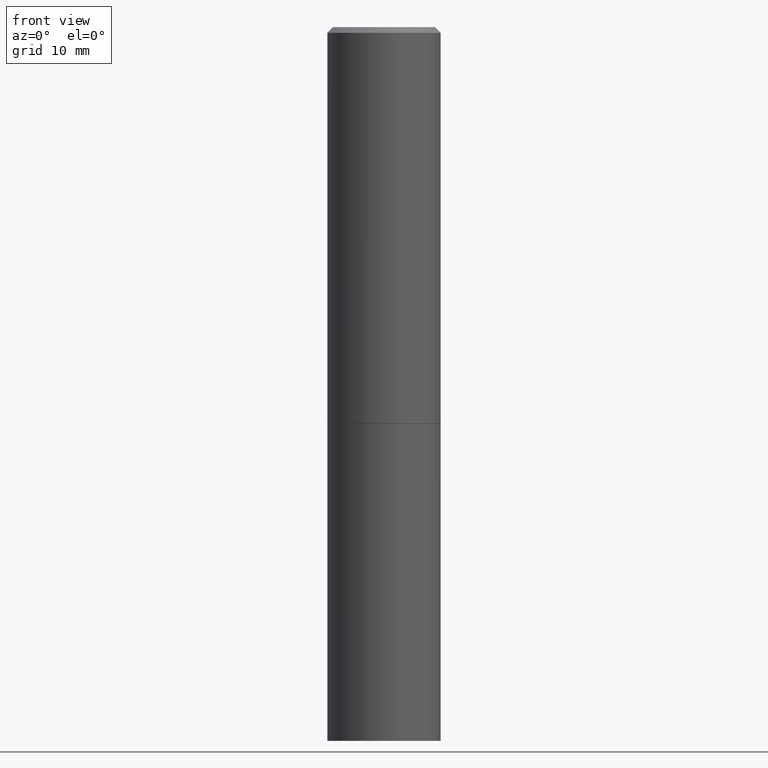
[diagram: clean part render]
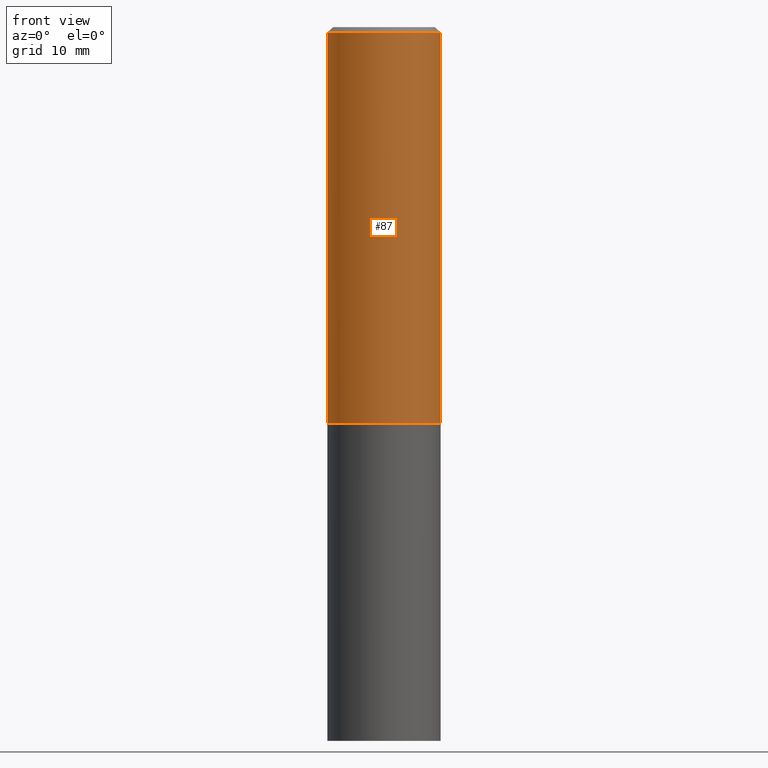
[diagram: same view with one face highlighted and labeled with its STEP entity id]
A machine part, front view. The second image highlights one B-rep face of the part: STEP entity #87.
In plain terms, the highlighted cylindrical surface (partial cylindrical patch) has radius 5 mm, axis along (-0, 0, 1).
Its self-contained STEP definition (entity closure, byte-faithful):
#6 = EDGE_CURVE ( 'NONE', #132, #109, #312, .T. ) ;
#7 = FACE_OUTER_BOUND ( 'NONE', #99, .T. ) ;
#12 = DIRECTION ( 'NONE',  ( -2.445468806185136597E-29, 3.491481338843145583E-15, 1.000000000000000000 ) ) ;
#39 = LINE ( 'NONE', #157, #106 ) ;
#40 = VERTEX_POINT ( 'NONE', #89 ) ;
#54 = AXIS2_PLACEMENT_3D ( 'NONE', #314, #12, #209 ) ;
#57 = CIRCLE ( 'NONE', #254, 0.1968499999999999417 ) ;
#86 = ORIENTED_EDGE ( 'NONE', *, *, #114, .F. ) ;
#87 = ADVANCED_FACE ( 'NONE', ( #7 ), #320, .T. ) ;
#89 = CARTESIAN_POINT ( 'NONE',  ( -0.1968499999999999417, -1.039921765771237577E-15, -1.376900000000000013 ) ) ;
#93 = CARTESIAN_POINT ( 'NONE',  ( 0.1968499999999997752, -1.420318657638187544E-15, -0.02000000000000004205 ) ) ;
#95 = DIRECTION ( 'NONE',  ( -2.445468806185136597E-29, 3.491481338843145583E-15, 1.000000000000000000 ) ) ;
#99 = EDGE_LOOP ( 'NONE', ( #86, #270, #201, #216 ) ) ;
#106 = VECTOR ( 'NONE', #342, 39.37007874015748143 ) ;
#109 = VERTEX_POINT ( 'NONE', #93 ) ;
#114 = EDGE_CURVE ( 'NONE', #40, #234, #39, .T. ) ;
#116 = VECTOR ( 'NONE', #147, 39.37007874015748143 ) ;
#132 = VERTEX_POINT ( 'NONE', #261 ) ;
#147 = DIRECTION ( 'NONE',  ( -2.445468806185136877E-29, 3.491481338843145188E-15, 1.000000000000000000 ) ) ;
#154 = CIRCLE ( 'NONE', #54, 0.1968499999999997752 ) ;
#157 = CARTESIAN_POINT ( 'NONE',  ( -0.1968499999999998307, 1.398703375343756013E-15, -9.682923725166775270E-30 ) ) ;
#165 = CARTESIAN_POINT ( 'NONE',  ( -0.1968499999999997752, 1.304766576325676930E-15, -0.02000000000000004205 ) ) ;
#166 = CARTESIAN_POINT ( 'NONE',  ( 3.367165999236314681E-29, -4.807420655453126643E-15, -1.376900000000000013 ) ) ;
#187 = AXIS2_PLACEMENT_3D ( 'NONE', #350, #95, #281 ) ;
#201 = ORIENTED_EDGE ( 'NONE', *, *, #6, .T. ) ;
#209 = DIRECTION ( 'NONE',  ( 1.000000000000000000, -6.982962677686266711E-15, 0.000000000000000000 ) ) ;
#216 = ORIENTED_EDGE ( 'NONE', *, *, #220, .F. ) ;
#220 = EDGE_CURVE ( 'NONE', #234, #109, #154, .T. ) ;
#234 = VERTEX_POINT ( 'NONE', #165 ) ;
#254 = AXIS2_PLACEMENT_3D ( 'NONE', #166, #265, #325 ) ;
#261 = CARTESIAN_POINT ( 'NONE',  ( 0.1968499999999999417, -6.182016858555667463E-15, -1.376900000000000013 ) ) ;
#265 = DIRECTION ( 'NONE',  ( -2.445468806185136597E-29, 3.491481338843145583E-15, 1.000000000000000000 ) ) ;
#270 = ORIENTED_EDGE ( 'NONE', *, *, #317, .T. ) ;
#281 = DIRECTION ( 'NONE',  ( 1.000000000000000000, -6.982962677686266711E-15, 4.876176775795935793E-29 ) ) ;
#312 = LINE ( 'NONE', #335, #116 ) ;
#314 = CARTESIAN_POINT ( 'NONE',  ( 4.890937612370283668E-31, -6.982962677686305168E-17, -0.02000000000000004205 ) ) ;
#317 = EDGE_CURVE ( 'NONE', #40, #132, #57, .T. ) ;
#320 = CYLINDRICAL_SURFACE ( 'NONE', #187, 0.1968499999999998307 ) ;
#325 = DIRECTION ( 'NONE',  ( 1.000000000000000000, -6.982962677686265922E-15, 0.000000000000000000 ) ) ;
#335 = CARTESIAN_POINT ( 'NONE',  ( 0.1968499999999998307, -1.374596203102540425E-15, 9.598753983154291049E-30 ) ) ;
#342 = DIRECTION ( 'NONE',  ( -2.445468806185136877E-29, 3.491481338843145188E-15, 1.000000000000000000 ) ) ;
#350 = CARTESIAN_POINT ( 'NONE',  ( 0.000000000000000000, 0.000000000000000000, 0.000000000000000000 ) ) ;